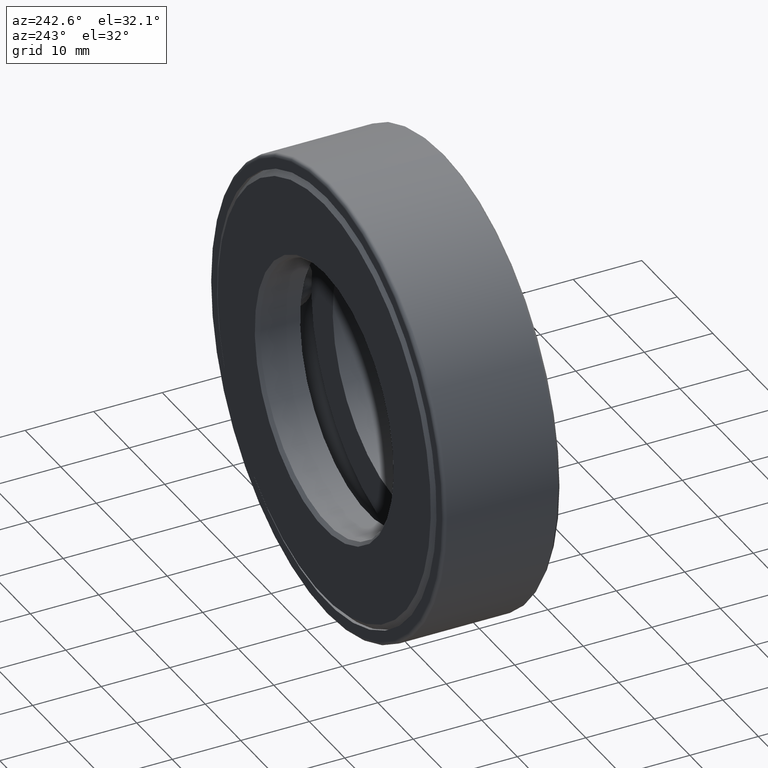
[diagram: clean part render]
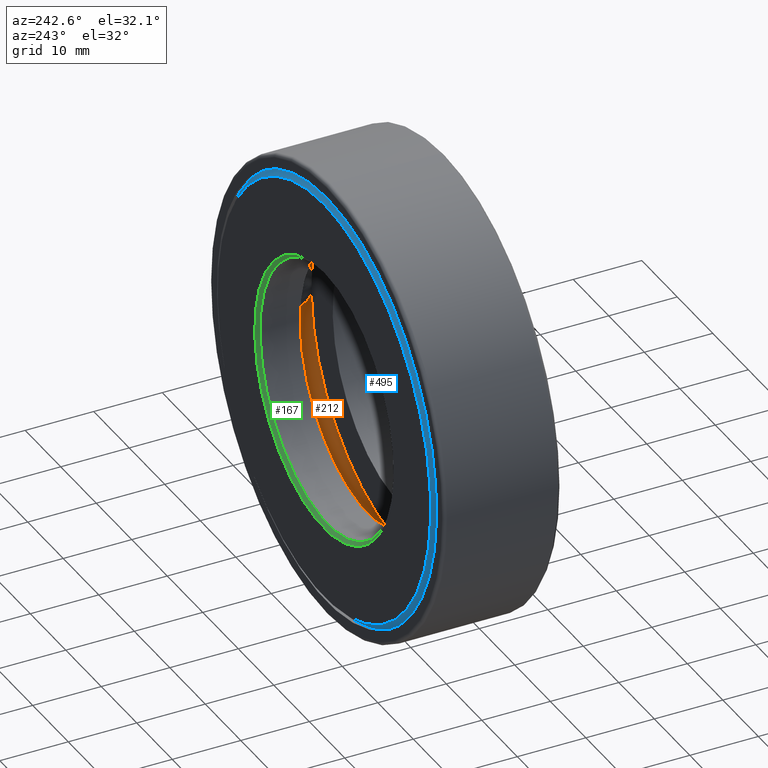
[diagram: same view with three faces highlighted in distinct colors, each labeled with its STEP entity id]
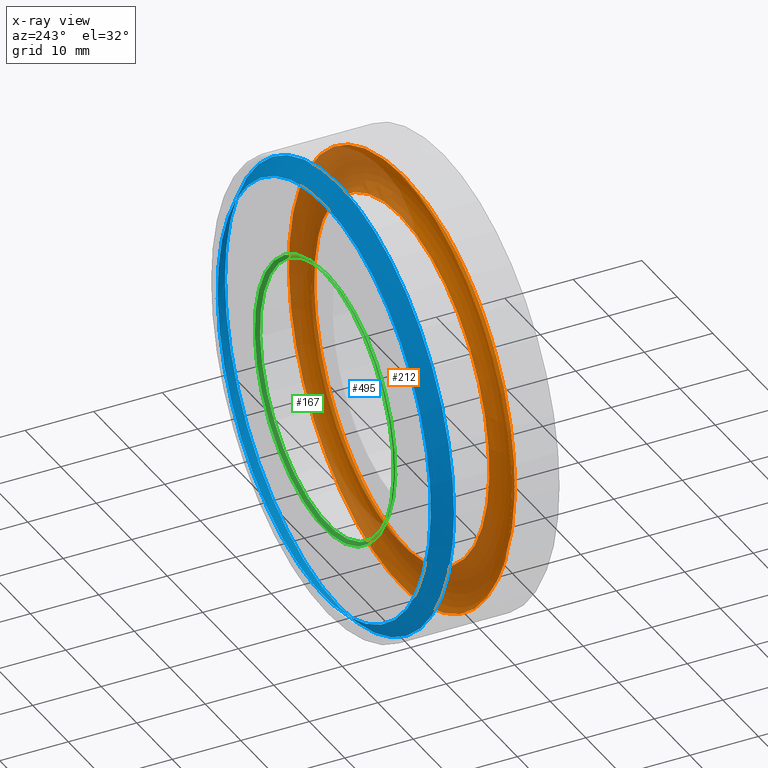
[diagram: x-ray of the same camera — body ghosted, the three highlighted faces saturated]
A machine part, auxiliary view with three faces highlighted in distinct colors.
The next image is the same camera in x-ray (body ghosted, the three faces saturated) — at least one of them is partly hidden behind the body in this view.
Their STEP definitions:

[orange] entity #212 — the highlighted toroidal blend (fillet) surface has major radius 28.2353 mm and minor (blend) radius 3.9688 mm.
#47 = CARTESIAN_POINT ( 'NONE',  ( 0.0000000000000000000, 0.2499999999999998300, 0.0000000000000000000 ) ) ;
#91 = AXIS2_PLACEMENT_3D ( 'NONE', #580, #122, #402 ) ;
#102 = CIRCLE ( 'NONE', #91, 0.9866250000000003100 ) ;
#122 = DIRECTION ( 'NONE',  ( -0.0000000000000000000, 1.000000000000000000, -0.0000000000000000000 ) ) ;
#157 = ORIENTED_EDGE ( 'NONE', *, *, #506, .F. ) ;
#160 = ORIENTED_EDGE ( 'NONE', *, *, #192, .T. ) ;
#184 = AXIS2_PLACEMENT_3D ( 'NONE', #47, #371, #413 ) ;
#192 = EDGE_CURVE ( 'NONE', #558, #558, #573, .T. ) ;
#212 = ADVANCED_FACE ( 'NONE', ( #347, #401 ), #232, .F. ) ;
#215 = EDGE_LOOP ( 'NONE', ( #157 ) ) ;
#232 = TOROIDAL_SURFACE ( 'NONE', #479, 1.111625000000000100, 0.1562500000000000000 ) ;
#252 = CARTESIAN_POINT ( 'NONE',  ( 0.0000000000000000000, 0.2499999999999998300, 1.236625000000000100 ) ) ;
#314 = VERTEX_POINT ( 'NONE', #472 ) ;
#347 = FACE_OUTER_BOUND ( 'NONE', #215, .T. ) ;
#371 = DIRECTION ( 'NONE',  ( -0.0000000000000000000, 1.000000000000000000, -0.0000000000000000000 ) ) ;
#401 = FACE_OUTER_BOUND ( 'NONE', #541, .T. ) ;
#402 = DIRECTION ( 'NONE',  ( 0.0000000000000000000, 0.0000000000000000000, 1.000000000000000000 ) ) ;
#410 = CARTESIAN_POINT ( 'NONE',  ( 0.0000000000000000000, 0.3437500000000000000, 0.0000000000000000000 ) ) ;
#413 = DIRECTION ( 'NONE',  ( 0.0000000000000000000, 0.0000000000000000000, 1.000000000000000000 ) ) ;
#472 = CARTESIAN_POINT ( 'NONE',  ( 0.0000000000000000000, 0.2499999999999998900, 0.9866250000000003100 ) ) ;
#479 = AXIS2_PLACEMENT_3D ( 'NONE', #410, #557, #601 ) ;
#506 = EDGE_CURVE ( 'NONE', #314, #314, #102, .T. ) ;
#541 = EDGE_LOOP ( 'NONE', ( #160 ) ) ;
#557 = DIRECTION ( 'NONE',  ( -0.0000000000000000000, 1.000000000000000000, -0.0000000000000000000 ) ) ;
#558 = VERTEX_POINT ( 'NONE', #252 ) ;
#573 = CIRCLE ( 'NONE', #184, 1.236625000000000100 ) ;
#580 = CARTESIAN_POINT ( 'NONE',  ( 0.0000000000000000000, 0.2499999999999998900, 0.0000000000000000000 ) ) ;
#601 = DIRECTION ( 'NONE',  ( 0.0000000000000000000, 0.0000000000000000000, 1.000000000000000000 ) ) ;

[blue] entity #495 — the highlighted conical surface has half-angle 45 deg.
#11 = DIRECTION ( 'NONE',  ( 0.0000000000000000000, -1.000000000000000000, 0.0000000000000000000 ) ) ;
#15 = ORIENTED_EDGE ( 'NONE', *, *, #381, .F. ) ;
#71 = DIRECTION ( 'NONE',  ( 0.0000000000000000000, 0.0000000000000000000, -1.000000000000000000 ) ) ;
#111 = CIRCLE ( 'NONE', #150, 1.181875000000000000 ) ;
#121 = FACE_OUTER_BOUND ( 'NONE', #377, .T. ) ;
#150 = AXIS2_PLACEMENT_3D ( 'NONE', #339, #242, #342 ) ;
#156 = CARTESIAN_POINT ( 'NONE',  ( 0.0000000000000000000, 0.5995000000000001400, 0.0000000000000000000 ) ) ;
#185 = FACE_BOUND ( 'NONE', #363, .T. ) ;
#190 = CARTESIAN_POINT ( 'NONE',  ( 0.0000000000000000000, 0.5995000000000001400, 1.269874999999999900 ) ) ;
#208 = CONICAL_SURFACE ( 'NONE', #397, 1.181875000000000000, 0.7853981633974482800 ) ;
#242 = DIRECTION ( 'NONE',  ( -0.0000000000000000000, 1.000000000000000000, -0.0000000000000000000 ) ) ;
#296 = CARTESIAN_POINT ( 'NONE',  ( 0.0000000000000000000, 0.6875000000000000000, 0.0000000000000000000 ) ) ;
#339 = CARTESIAN_POINT ( 'NONE',  ( 0.0000000000000000000, 0.6875000000000000000, 0.0000000000000000000 ) ) ;
#342 = DIRECTION ( 'NONE',  ( 0.0000000000000000000, 0.0000000000000000000, 1.000000000000000000 ) ) ;
#353 = DIRECTION ( 'NONE',  ( 0.0000000000000000000, 0.0000000000000000000, 1.000000000000000000 ) ) ;
#358 = CARTESIAN_POINT ( 'NONE',  ( 0.0000000000000000000, 0.6875000000000000000, 1.181875000000000000 ) ) ;
#361 = CIRCLE ( 'NONE', #385, 1.269874999999999900 ) ;
#363 = EDGE_LOOP ( 'NONE', ( #15 ) ) ;
#377 = EDGE_LOOP ( 'NONE', ( #563 ) ) ;
#381 = EDGE_CURVE ( 'NONE', #407, #407, #111, .T. ) ;
#385 = AXIS2_PLACEMENT_3D ( 'NONE', #156, #395, #353 ) ;
#395 = DIRECTION ( 'NONE',  ( -0.0000000000000000000, 1.000000000000000000, -0.0000000000000000000 ) ) ;
#397 = AXIS2_PLACEMENT_3D ( 'NONE', #296, #11, #71 ) ;
#407 = VERTEX_POINT ( 'NONE', #358 ) ;
#451 = EDGE_CURVE ( 'NONE', #501, #501, #361, .T. ) ;
#495 = ADVANCED_FACE ( 'NONE', ( #121, #185 ), #208, .T. ) ;
#501 = VERTEX_POINT ( 'NONE', #190 ) ;
#563 = ORIENTED_EDGE ( 'NONE', *, *, #451, .T. ) ;

[green] entity #167 — the highlighted conical surface has half-angle 45 deg.
#6 = DIRECTION ( 'NONE',  ( -0.0000000000000000000, 1.000000000000000000, -0.0000000000000000000 ) ) ;
#14 = DIRECTION ( 'NONE',  ( 0.0000000000000000000, 0.0000000000000000000, 1.000000000000000000 ) ) ;
#42 = AXIS2_PLACEMENT_3D ( 'NONE', #236, #6, #14 ) ;
#50 = EDGE_LOOP ( 'NONE', ( #146 ) ) ;
#52 = EDGE_LOOP ( 'NONE', ( #408 ) ) ;
#59 = AXIS2_PLACEMENT_3D ( 'NONE', #504, #365, #220 ) ;
#86 = CIRCLE ( 'NONE', #42, 0.7700000000000003500 ) ;
#98 = EDGE_CURVE ( 'NONE', #519, #519, #534, .T. ) ;
#146 = ORIENTED_EDGE ( 'NONE', *, *, #391, .T. ) ;
#167 = ADVANCED_FACE ( 'NONE', ( #294, #486 ), #393, .F. ) ;
#177 = CARTESIAN_POINT ( 'NONE',  ( 0.0000000000000000000, 0.6674999999999995400, 0.7500000000000002200 ) ) ;
#220 = DIRECTION ( 'NONE',  ( 0.0000000000000000000, 0.0000000000000000000, 1.000000000000000000 ) ) ;
#236 = CARTESIAN_POINT ( 'NONE',  ( 0.0000000000000000000, 0.6875000000000000000, 0.0000000000000000000 ) ) ;
#264 = CARTESIAN_POINT ( 'NONE',  ( 0.0000000000000000000, 0.6674999999999995400, 0.0000000000000000000 ) ) ;
#294 = FACE_OUTER_BOUND ( 'NONE', #50, .T. ) ;
#318 = DIRECTION ( 'NONE',  ( 0.0000000000000000000, 0.0000000000000000000, 1.000000000000000000 ) ) ;
#365 = DIRECTION ( 'NONE',  ( -0.0000000000000000000, 1.000000000000000000, -0.0000000000000000000 ) ) ;
#391 = EDGE_CURVE ( 'NONE', #436, #436, #86, .T. ) ;
#393 = CONICAL_SURFACE ( 'NONE', #59, 0.7500000000000002200, 0.7853981633974415100 ) ;
#408 = ORIENTED_EDGE ( 'NONE', *, *, #98, .F. ) ;
#436 = VERTEX_POINT ( 'NONE', #499 ) ;
#486 = FACE_BOUND ( 'NONE', #52, .T. ) ;
#499 = CARTESIAN_POINT ( 'NONE',  ( 0.0000000000000000000, 0.6875000000000000000, 0.7700000000000003500 ) ) ;
#504 = CARTESIAN_POINT ( 'NONE',  ( 0.0000000000000000000, 0.6674999999999995400, 0.0000000000000000000 ) ) ;
#519 = VERTEX_POINT ( 'NONE', #177 ) ;
#534 = CIRCLE ( 'NONE', #593, 0.7500000000000002200 ) ;
#593 = AXIS2_PLACEMENT_3D ( 'NONE', #264, #595, #318 ) ;
#595 = DIRECTION ( 'NONE',  ( -0.0000000000000000000, 1.000000000000000000, -0.0000000000000000000 ) ) ;